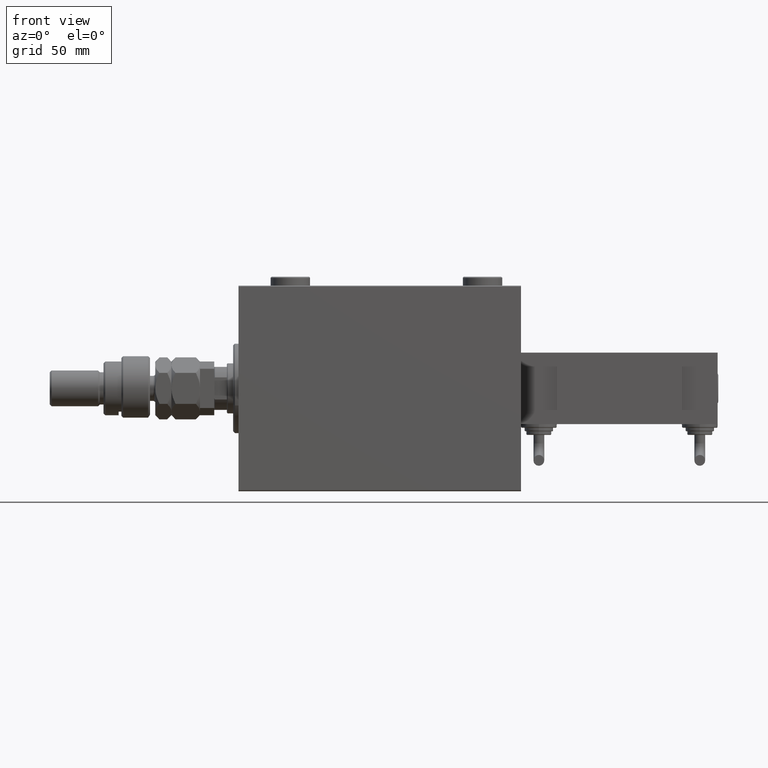
[diagram: clean part render]
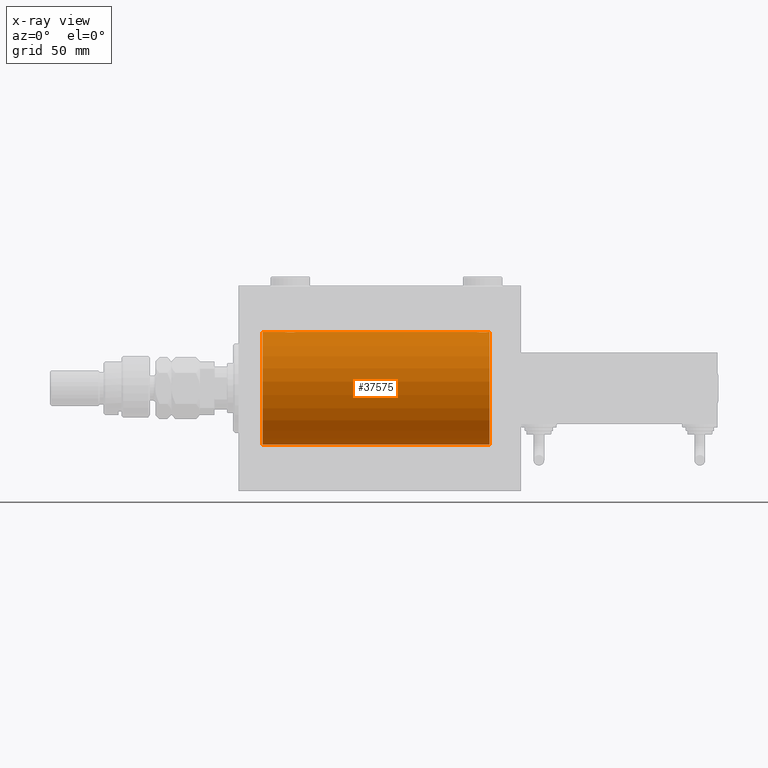
[diagram: x-ray — body ghosted, one internal face saturated and labeled with its STEP entity id]
A machine part, front view, then the same camera in x-ray: the body is ghosted and one INTERNAL B-rep face — a face not visible from any outside direction — is saturated and labeled: STEP entity #37575.
In plain terms, the highlighted cylindrical surface (partial cylindrical patch) has radius 31.5 mm, axis along (-1, -0, -0).
Its self-contained STEP definition (entity closure, byte-faithful):
#16 = CIRCLE ( 'NONE', #1745, 31.50000000000000000 ) ;
#804 = CARTESIAN_POINT ( 'NONE',  ( 32.00000000000000000, 3.857637396137448068E-15, -31.50000000000000000 ) ) ;
#909 = CARTESIAN_POINT ( 'NONE',  ( 140.5000000000000000, 0.000000000000000000, 31.50000000000000000 ) ) ;
#1101 = CARTESIAN_POINT ( 'NONE',  ( 26.39582218725271900, -1.502389880413001144, 31.46458023642405166 ) ) ;
#1145 = LINE ( 'NONE', #38729, #23881 ) ;
#1366 = CARTESIAN_POINT ( 'NONE',  ( 28.79953541025904684, -2.999845816735297266, 31.35683219171744796 ) ) ;
#1458 = CARTESIAN_POINT ( 'NONE',  ( 32.00000000000000000, 3.857637396137448068E-15, -31.50000000000000000 ) ) ;
#1727 = CARTESIAN_POINT ( 'NONE',  ( 31.26095462456130747, -1.981494824113326114, -31.43792153503156683 ) ) ;
#1745 = AXIS2_PLACEMENT_3D ( 'NONE', #36035, #48841, #52649 ) ;
#1826 = CARTESIAN_POINT ( 'NONE',  ( 133.5000000000000000, -2.118130973563677748E-23, 31.50000000000000000 ) ) ;
#2018 = VECTOR ( 'NONE', #41263, 1000.000000000000000 ) ;
#2537 = CARTESIAN_POINT ( 'NONE',  ( 31.84660463742499559, -0.9669616078781945179, -31.48567319468626735 ) ) ;
#2825 = CARTESIAN_POINT ( 'NONE',  ( 135.7253090556563109, -2.904836261170105960, -31.36579955910873707 ) ) ;
#3093 = CARTESIAN_POINT ( 'NONE',  ( 134.6729577462972713, -2.387531469909777382, -31.40957782495775419 ) ) ;
#3094 = ORIENTED_EDGE ( 'NONE', *, *, #37023, .T. ) ;
#3207 = DIRECTION ( 'NONE',  ( -1.000000000000000000, -0.000000000000000000, -0.000000000000000000 ) ) ;
#3363 = CARTESIAN_POINT ( 'NONE',  ( 133.5797933704996581, -0.7905881588836228824, -31.49214662150070509 ) ) ;
#3492 = VECTOR ( 'NONE', #3207, 1000.000000000000000 ) ;
#3867 = AXIS2_PLACEMENT_3D ( 'NONE', #5209, #32816, #12105 ) ;
#3914 = VERTEX_POINT ( 'NONE', #27612 ) ;
#4004 = CARTESIAN_POINT ( 'NONE',  ( 140.5000000000000000, 0.000000000000000000, 0.000000000000000000 ) ) ;
#4658 = CARTESIAN_POINT ( 'NONE',  ( 32.00000000000001421, -0.3965830985361748495, 31.50000000000001421 ) ) ;
#5148 = ORIENTED_EDGE ( 'NONE', *, *, #43132, .F. ) ;
#5209 = CARTESIAN_POINT ( 'NONE',  ( 13.50000000000001243, 0.000000000000000000, 0.000000000000000000 ) ) ;
#5446 = CARTESIAN_POINT ( 'NONE',  ( 28.03055544341478722, -2.845838211243333138, 31.37127560316186603 ) ) ;
#5797 = CARTESIAN_POINT ( 'NONE',  ( 31.60417781274729165, -1.502389880412996259, -31.46458023642406587 ) ) ;
#5858 = VERTEX_POINT ( 'NONE', #8378 ) ;
#6061 = CARTESIAN_POINT ( 'NONE',  ( 28.60885452660059869, -2.980809450819698725, -31.35867074198615256 ) ) ;
#6448 = CARTESIAN_POINT ( 'NONE',  ( 133.5189849060847962, -0.3904857149112037629, 31.49817436802766935 ) ) ;
#6627 = CARTESIAN_POINT ( 'NONE',  ( 133.5000000000000000, -0.3965830985361880057, -31.50000000000000000 ) ) ;
#6711 = CARTESIAN_POINT ( 'NONE',  ( 136.1046588899990581, -2.980257240990053624, 31.35872356503797320 ) ) ;
#6876 = EDGE_CURVE ( 'NONE', #53238, #47749, #30775, .T. ) ;
#6896 = CARTESIAN_POINT ( 'NONE',  ( 133.8980785956084958, -1.506272792558336793, -31.46439306106695710 ) ) ;
#7146 = B_SPLINE_CURVE_WITH_KNOTS ( 'NONE', 3,
 ( #1458, #17777, #51033, #25429, #2537, #18571, #5797, #19117, #1727, #30854, #23472, #27023, #18311, #35225, #52385, #31392, #39042, #34952, #6061, #30587, #47237, #48035, #51574, #14231, #22654, #9885, #26491, #48306, #10416, #47501, #18842, #35498 ),
 .UNSPECIFIED., .F., .F.,
 ( 4, 2, 2, 2, 2, 2, 2, 2, 2, 2, 2, 2, 2, 2, 2, 4 ),
 ( 0.009384682587134662163, 0.009971088165454068328, 0.01055749374377347449, 0.01114389932209288066, 0.01173030490041228682, 0.01231671047873168605, 0.01290311605705108527, 0.01348952163537048277, 0.01407592721368988199, 0.01466233279200928122, 0.01524873837032868044, 0.01583514394864807967, 0.01642154952696747716, 0.01700795510528687812, 0.01759436068360627908, 0.01876717184024507407 ),
 .UNSPECIFIED. ) ;
#7172 = CARTESIAN_POINT ( 'NONE',  ( 134.2417549809673574, -1.984587626072075173, -31.43772577203671759 ) ) ;
#7260 = CARTESIAN_POINT ( 'NONE',  ( 135.5305554434147837, -2.845838211243326032, 31.37127560316188024 ) ) ;
#7438 = CARTESIAN_POINT ( 'NONE',  ( 138.7609546245612933, -1.981494824113336994, -31.43792153503156683 ) ) ;
#8210 = CIRCLE ( 'NONE', #3867, 31.50000000000000000 ) ;
#8378 = CARTESIAN_POINT ( 'NONE',  ( 26.00000000000000355, -6.595038141055444136E-15, -31.50000000000000000 ) ) ;
#8734 = CARTESIAN_POINT ( 'NONE',  ( 30.82704225370267892, -2.387531469909770276, 31.40957782495776129 ) ) ;
#8831 = VECTOR ( 'NONE', #21864, 1000.000000000000000 ) ;
#9449 = DIRECTION ( 'NONE',  ( -1.000000000000000000, -0.000000000000000000, -0.000000000000000000 ) ) ;
#9853 = AXIS2_PLACEMENT_3D ( 'NONE', #4004, #53849, #33398 ) ;
#9885 = CARTESIAN_POINT ( 'NONE',  ( 26.74175498096735026, -1.984587626072075617, -31.43772577203673180 ) ) ;
#9984 = CARTESIAN_POINT ( 'NONE',  ( 140.5000000000000000, 0.000000000000000000, 31.50000000000000000 ) ) ;
#10249 = CARTESIAN_POINT ( 'NONE',  ( 136.8911454733994333, -2.980809450819698281, 31.35867074198615967 ) ) ;
#10416 = CARTESIAN_POINT ( 'NONE',  ( 26.30470357640989576, -1.331741824817665343, -31.47235367475392920 ) ) ;
#10703 = CARTESIAN_POINT ( 'NONE',  ( 133.8047035764099064, -1.331741824817667563, -31.47235367475392920 ) ) ;
#10788 = CARTESIAN_POINT ( 'NONE',  ( 133.5000000000000000, -0.1958045626907475856, 31.50000000000000000 ) ) ;
#10817 = LINE ( 'NONE', #24145, #3492 ) ;
#11054 = CARTESIAN_POINT ( 'NONE',  ( 138.4814346287304261, -2.261012035264779119, 31.41905495618428645 ) ) ;
#11322 = CARTESIAN_POINT ( 'NONE',  ( 133.6533953625750257, -0.9669616078782046209, 31.48567319468627801 ) ) ;
#11327 = CARTESIAN_POINT ( 'NONE',  ( 139.5000000000000000, 4.699731104275013306E-15, 31.50000000000000000 ) ) ;
#11775 = CARTESIAN_POINT ( 'NONE',  ( 139.4999999999999716, -0.1958045626907426173, -31.49999999999999289 ) ) ;
#12105 = DIRECTION ( 'NONE',  ( 0.000000000000000000, 0.000000000000000000, 1.000000000000000000 ) ) ;
#13466 = ORIENTED_EDGE ( 'NONE', *, *, #36084, .T. ) ;
#13593 = VERTEX_POINT ( 'NONE', #25122 ) ;
#13874 = CARTESIAN_POINT ( 'NONE',  ( 27.01539640075335669, -2.258226318633785201, 31.41925597582825702 ) ) ;
#14132 = EDGE_CURVE ( 'NONE', #15436, #5858, #7146, .T. ) ;
#14231 = CARTESIAN_POINT ( 'NONE',  ( 27.17295774629732819, -2.387531469909775605, -31.40957782495775419 ) ) ;
#14332 = CARTESIAN_POINT ( 'NONE',  ( 136.2995354102590113, -2.999845816735293713, 31.35683219171744796 ) ) ;
#14599 = CARTESIAN_POINT ( 'NONE',  ( 137.2746909443437175, -2.904836261170101519, 31.36579955910872286 ) ) ;
#14783 = CARTESIAN_POINT ( 'NONE',  ( 139.1041778127473094, -1.502389880412994483, -31.46458023642405877 ) ) ;
#15324 = CARTESIAN_POINT ( 'NONE',  ( 136.8953411100009703, -2.980257240990054513, -31.35872356503798031 ) ) ;
#15406 = CARTESIAN_POINT ( 'NONE',  ( 134.1149855772307546, -1.830470878313871008, 31.44719957596828763 ) ) ;
#15436 = VERTEX_POINT ( 'NONE', #804 ) ;
#15570 = B_SPLINE_CURVE_WITH_KNOTS ( 'NONE', 3,
 ( #25333, #42253, #25595, #33787, #25859, #21764, #1101, #29959, #50945, #13874, #26123, #42785, #29696, #5446, #33527, #25063, #1366, #50422, #17416, #17949, #50161, #29433, #30488, #8734, #34045, #22033, #34589, #41728, #46084, #38159, #4658, #46351 ),
 .UNSPECIFIED., .F., .F.,
 ( 4, 2, 2, 2, 2, 2, 2, 2, 2, 2, 2, 2, 2, 2, 2, 4 ),
 ( 0.009384682587134639611, 0.009971088165454038837, 0.01055749374377343980, 0.01114389932209284076, 0.01173030490041223999, 0.01231671047873163921, 0.01290311605705104017, 0.01348952163537044113, 0.01407592721368984036, 0.01466233279200923958, 0.01524873837032864055, 0.01583514394864804151, 0.01642154952696744247, 0.01700795510528683996, 0.01759436068360624092, 0.01876717184024503243 ),
 .UNSPECIFIED. ) ;
#15573 = CARTESIAN_POINT ( 'NONE',  ( 140.5000000000000000, 0.000000000000000000, 31.50000000000000000 ) ) ;
#15594 = CARTESIAN_POINT ( 'NONE',  ( 137.2788191264232296, -2.903733559410679455, -31.36590199989304395 ) ) ;
#15867 = CARTESIAN_POINT ( 'NONE',  ( 139.5000000000000000, 3.857637396132320472E-15, -31.50000000000000000 ) ) ;
#16408 = EDGE_CURVE ( 'NONE', #38034, #48499, #36918, .T. ) ;
#16568 = CARTESIAN_POINT ( 'NONE',  ( 140.5000000000000000, 3.857637417314162689E-15, -31.50000000000000000 ) ) ;
#16768 = FACE_OUTER_BOUND ( 'NONE', #30683, .T. ) ;
#17250 = CARTESIAN_POINT ( 'NONE',  ( 140.5000000000000000, 3.857637417314162689E-15, -31.50000000000000000 ) ) ;
#17416 = CARTESIAN_POINT ( 'NONE',  ( 29.39114547339941552, -2.980809450819701834, 31.35867074198615967 ) ) ;
#17777 = CARTESIAN_POINT ( 'NONE',  ( 32.00000000000001421, -0.1958045626907418957, -31.50000000000000711 ) ) ;
#17878 = LINE ( 'NONE', #9984, #24891 ) ;
#17949 = CARTESIAN_POINT ( 'NONE',  ( 29.77469094434372821, -2.904836261170106404, 31.36579955910873707 ) ) ;
#18311 = CARTESIAN_POINT ( 'NONE',  ( 30.33239958099164824, -2.695056442718529954, -31.38458855656185875 ) ) ;
#18343 = EDGE_CURVE ( 'NONE', #40595, #38034, #21341, .T. ) ;
#18537 = CARTESIAN_POINT ( 'NONE',  ( 13.50000000000001243, 0.000000000000000000, 31.50000000000000000 ) ) ;
#18571 = CARTESIAN_POINT ( 'NONE',  ( 31.69714238836700915, -1.328004386210301480, -31.47251238182141009 ) ) ;
#18673 = CARTESIAN_POINT ( 'NONE',  ( 134.6695630851299654, -2.384935707362434876, 31.40977595730572958 ) ) ;
#18842 = CARTESIAN_POINT ( 'NONE',  ( 26.00000000000000355, -0.3965830985361813443, -31.50000000000000711 ) ) ;
#18860 = CARTESIAN_POINT ( 'NONE',  ( 139.4041945073805380, -0.7775502215293800257, -31.49099686045559565 ) ) ;
#19117 = CARTESIAN_POINT ( 'NONE',  ( 31.38501442276926667, -1.830470878313872563, -31.44719957596828763 ) ) ;
#19135 = CARTESIAN_POINT ( 'NONE',  ( 133.5000000000000000, -1.352509265459636606E-14, -31.50000000000000000 ) ) ;
#19226 = CARTESIAN_POINT ( 'NONE',  ( 139.1019214043915326, -1.506272792558311702, 31.46439306106696421 ) ) ;
#19409 = CARTESIAN_POINT ( 'NONE',  ( 139.1971423883670411, -1.328004386210298815, -31.47251238182141009 ) ) ;
#19678 = CARTESIAN_POINT ( 'NONE',  ( 138.0045628500700161, -2.602826974226397638, -31.39247100434485560 ) ) ;
#19949 = CARTESIAN_POINT ( 'NONE',  ( 134.9990184370385293, -2.604888532024794312, -31.39229907792057972 ) ) ;
#20433 = CARTESIAN_POINT ( 'NONE',  ( 26.00000000000000355, -2.117263226567934635E-23, 31.50000000000000000 ) ) ;
#21341 = LINE ( 'NONE', #17250, #8831 ) ;
#21764 = CARTESIAN_POINT ( 'NONE',  ( 26.30285761163300151, -1.328004386210305698, 31.47251238182140298 ) ) ;
#21864 = DIRECTION ( 'NONE',  ( -1.000000000000000000, -0.000000000000000000, -0.000000000000000000 ) ) ;
#22033 = CARTESIAN_POINT ( 'NONE',  ( 31.25824501903266039, -1.984587626072074285, 31.43772577203672469 ) ) ;
#22654 = CARTESIAN_POINT ( 'NONE',  ( 27.01856537126958813, -2.261012035264781783, -31.41905495618428645 ) ) ;
#22759 = CARTESIAN_POINT ( 'NONE',  ( 137.8286541468751523, -2.696917666262893309, 31.38442820068731365 ) ) ;
#23472 = CARTESIAN_POINT ( 'NONE',  ( 30.83043691487002746, -2.384935707362433988, -31.40977595730572958 ) ) ;
#23577 = CARTESIAN_POINT ( 'NONE',  ( 138.0009815629614991, -2.604888532024791203, 31.39229907792058683 ) ) ;
#23881 = VECTOR ( 'NONE', #25379, 1000.000000000000000 ) ;
#24030 = CARTESIAN_POINT ( 'NONE',  ( 138.4846035992466682, -2.258226318633792751, -31.41925597582824992 ) ) ;
#24145 = CARTESIAN_POINT ( 'NONE',  ( 140.5000000000000000, 3.857637417314162689E-15, -31.50000000000000000 ) ) ;
#24686 = CARTESIAN_POINT ( 'NONE',  ( 133.5000000000000000, -2.118130973563677748E-23, 31.50000000000000000 ) ) ;
#24891 = VECTOR ( 'NONE', #9449, 1000.000000000000000 ) ;
#25063 = CARTESIAN_POINT ( 'NONE',  ( 28.60465888999904749, -2.980257240990054513, 31.35872356503797320 ) ) ;
#25122 = CARTESIAN_POINT ( 'NONE',  ( 32.00000000000000000, -3.906065418435112189E-16, 31.50000000000000000 ) ) ;
#25333 = CARTESIAN_POINT ( 'NONE',  ( 26.00000000000000355, -2.117263226567934635E-23, 31.50000000000000000 ) ) ;
#25379 = DIRECTION ( 'NONE',  ( -1.000000000000000000, -0.000000000000000000, -0.000000000000000000 ) ) ;
#25429 = CARTESIAN_POINT ( 'NONE',  ( 31.90419450738055218, -0.7775502215293819130, -31.49099686045559565 ) ) ;
#25595 = CARTESIAN_POINT ( 'NONE',  ( 26.01898490608483527, -0.3904857149112033743, 31.49817436802766935 ) ) ;
#25859 = CARTESIAN_POINT ( 'NONE',  ( 26.15339536257501507, -0.9669616078781987367, 31.48567319468626735 ) ) ;
#26123 = CARTESIAN_POINT ( 'NONE',  ( 27.16956308512997964, -2.384935707362437096, 31.40977595730572958 ) ) ;
#26291 = EDGE_CURVE ( 'NONE', #40595, #33526, #16, .T. ) ;
#26491 = CARTESIAN_POINT ( 'NONE',  ( 26.61753127733371116, -1.833765390051047106, -31.44700610425690002 ) ) ;
#26676 = EDGE_CURVE ( 'NONE', #33526, #47749, #32674, .T. ) ;
#26856 = CARTESIAN_POINT ( 'NONE',  ( 138.3270422537026718, -2.387531469909772941, 31.40957782495776840 ) ) ;
#27023 = CARTESIAN_POINT ( 'NONE',  ( 30.50456285006998769, -2.602826974226392309, -31.39247100434485560 ) ) ;
#27580 = CARTESIAN_POINT ( 'NONE',  ( 136.1088545266005951, -2.980809450819701834, -31.35867074198615256 ) ) ;
#27612 = CARTESIAN_POINT ( 'NONE',  ( 13.50000000000001243, 3.857637417314162689E-15, -31.50000000000000000 ) ) ;
#27668 = CARTESIAN_POINT ( 'NONE',  ( 139.1952964235900652, -1.331741824817656683, 31.47235367475393630 ) ) ;
#27965 = ORIENTED_EDGE ( 'NONE', *, *, #34635, .T. ) ;
#28396 = CARTESIAN_POINT ( 'NONE',  ( 139.4810150939152322, -0.3904857149111997106, -31.49817436802768000 ) ) ;
#28976 = LINE ( 'NONE', #909, #2018 ) ;
#29256 = VERTEX_POINT ( 'NONE', #20433 ) ;
#29433 = CARTESIAN_POINT ( 'NONE',  ( 30.32865414687508832, -2.696917666262907520, 31.38442820068731365 ) ) ;
#29696 = CARTESIAN_POINT ( 'NONE',  ( 27.66760041900836953, -2.695056442718533507, 31.38458855656185875 ) ) ;
#29959 = CARTESIAN_POINT ( 'NONE',  ( 26.61498557723073333, -1.830470878313877892, 31.44719957596828053 ) ) ;
#30488 = CARTESIAN_POINT ( 'NONE',  ( 30.50098156296146712, -2.604888532024788983, 31.39229907792058683 ) ) ;
#30587 = CARTESIAN_POINT ( 'NONE',  ( 28.22530905565627179, -2.904836261170103739, -31.36579955910872286 ) ) ;
#30683 = EDGE_LOOP ( 'NONE', ( #32030, #50118, #47280, #13466, #49318, #52546, #27965, #5148, #3094, #33257, #53525, #35910 ) ) ;
#30775 = B_SPLINE_CURVE_WITH_KNOTS ( 'NONE', 3,
 ( #1826, #10788, #6448, #51677, #11322, #52494, #36141, #15406, #32036, #48678, #18673, #51941, #44048, #7260, #31773, #6711, #14332, #39965, #10249, #14599, #48409, #22759, #23577, #26856, #11054, #31502, #39141, #19226, #27668, #30953, #44320, #31225 ),
 .UNSPECIFIED., .F., .F.,
 ( 4, 2, 2, 2, 2, 2, 2, 2, 2, 2, 2, 2, 2, 2, 2, 4 ),
 ( 0.009384682587134643081, 0.009971088165454042307, 0.01055749374377344327, 0.01114389932209284423, 0.01173030490041224345, 0.01231671047873164268, 0.01290311605705104364, 0.01348952163537044460, 0.01407592721368984383, 0.01466233279200924305, 0.01524873837032864402, 0.01583514394864804498, 0.01642154952696744594, 0.01700795510528684690, 0.01759436068360624439, 0.01876717184024504284 ),
 .UNSPECIFIED. ) ;
#30854 = CARTESIAN_POINT ( 'NONE',  ( 30.98460359924664687, -2.258226318633781649, -31.41925597582825702 ) ) ;
#30953 = CARTESIAN_POINT ( 'NONE',  ( 139.4202066295003988, -0.7905881588836107809, 31.49214662150069088 ) ) ;
#30974 = CARTESIAN_POINT ( 'NONE',  ( 139.5000000000000000, 3.857637396132320472E-15, -31.50000000000000000 ) ) ;
#31225 = CARTESIAN_POINT ( 'NONE',  ( 139.5000000000000000, 4.699731104275013306E-15, 31.50000000000000000 ) ) ;
#31392 = CARTESIAN_POINT ( 'NONE',  ( 29.39534111000094541, -2.980257240990050960, -31.35872356503797320 ) ) ;
#31441 = VERTEX_POINT ( 'NONE', #18537 ) ;
#31502 = CARTESIAN_POINT ( 'NONE',  ( 138.7582450190326995, -1.984587626072069844, 31.43772577203671759 ) ) ;
#31685 = CARTESIAN_POINT ( 'NONE',  ( 137.4694445565852448, -2.845838211243329585, -31.37127560316186603 ) ) ;
#31773 = CARTESIAN_POINT ( 'NONE',  ( 135.7211808735768841, -2.903733559410683895, 31.36590199989304395 ) ) ;
#32030 = ORIENTED_EDGE ( 'NONE', *, *, #26291, .F. ) ;
#32036 = CARTESIAN_POINT ( 'NONE',  ( 134.2390453754387636, -1.981494824113333442, 31.43792153503156683 ) ) ;
#32136 = DIRECTION ( 'NONE',  ( -1.000000000000000000, -0.000000000000000000, -0.000000000000000000 ) ) ;
#32216 = CARTESIAN_POINT ( 'NONE',  ( 134.5185653712696308, -2.261012035264782671, -31.41905495618427935 ) ) ;
#32590 = EDGE_CURVE ( 'NONE', #53238, #13593, #28976, .T. ) ;
#32674 = LINE ( 'NONE', #44690, #45329 ) ;
#32816 = DIRECTION ( 'NONE',  ( -1.000000000000000000, 0.000000000000000000, 0.000000000000000000 ) ) ;
#33257 = ORIENTED_EDGE ( 'NONE', *, *, #32590, .F. ) ;
#33398 = DIRECTION ( 'NONE',  ( 0.000000000000000000, 0.000000000000000000, 1.000000000000000000 ) ) ;
#33526 = VERTEX_POINT ( 'NONE', #15573 ) ;
#33527 = CARTESIAN_POINT ( 'NONE',  ( 28.22118087357680238, -2.903733559410683895, 31.36590199989303684 ) ) ;
#33787 = CARTESIAN_POINT ( 'NONE',  ( 26.09580549261944427, -0.7775502215293862429, 31.49099686045558144 ) ) ;
#34045 = CARTESIAN_POINT ( 'NONE',  ( 30.98143462873041898, -2.261012035264782227, 31.41905495618429356 ) ) ;
#34589 = CARTESIAN_POINT ( 'NONE',  ( 31.38246872266631371, -1.833765390051040223, 31.44700610425690712 ) ) ;
#34635 = EDGE_CURVE ( 'NONE', #3914, #31441, #8210, .T. ) ;
#34952 = CARTESIAN_POINT ( 'NONE',  ( 28.80417705560560648, -3.000152387858484371, -31.35680286115500337 ) ) ;
#35225 = CARTESIAN_POINT ( 'NONE',  ( 29.96944455658523054, -2.845838211243329585, -31.37127560316186603 ) ) ;
#35498 = CARTESIAN_POINT ( 'NONE',  ( 26.00000000000000355, -6.595038141055444136E-15, -31.50000000000000000 ) ) ;
#35910 = ORIENTED_EDGE ( 'NONE', *, *, #26676, .F. ) ;
#36035 = CARTESIAN_POINT ( 'NONE',  ( 140.5000000000000000, 0.000000000000000000, 0.000000000000000000 ) ) ;
#36084 = EDGE_CURVE ( 'NONE', #48499, #15436, #1145, .T. ) ;
#36141 = CARTESIAN_POINT ( 'NONE',  ( 133.8958221872527474, -1.502389880412993595, 31.46458023642405877 ) ) ;
#36918 = B_SPLINE_CURVE_WITH_KNOTS ( 'NONE', 3,
 ( #15867, #11775, #28396, #18860, #45048, #19409, #14783, #44235, #7438, #24030, #44506, #19678, #43963, #31685, #15594, #15324, #48055, #53212, #27580, #2825, #44774, #48594, #19949, #3093, #32216, #7172, #40693, #6896, #10703, #3363, #6627, #19135 ),
 .UNSPECIFIED., .F., .F.,
 ( 4, 2, 2, 2, 2, 2, 2, 2, 2, 2, 2, 2, 2, 2, 2, 4 ),
 ( 0.009384682587134637877, 0.009971088165454037103, 0.01055749374377343633, 0.01114389932209283382, 0.01173030490041223305, 0.01231671047873163227, 0.01290311605705102976, 0.01348952163537042899, 0.01407592721368982822, 0.01466233279200922744, 0.01524873837032862667, 0.01583514394864802416, 0.01642154952696742165, 0.01700795510528682261, 0.01759436068360622010, 0.01876717184024501855 ),
 .UNSPECIFIED. ) ;
#37023 = EDGE_CURVE ( 'NONE', #29256, #13593, #15570, .T. ) ;
#37575 = ADVANCED_FACE ( 'NONE', ( #16768 ), #50827, .F. ) ;
#38034 = VERTEX_POINT ( 'NONE', #30974 ) ;
#38159 = CARTESIAN_POINT ( 'NONE',  ( 31.92020662950040943, -0.7905881588836116691, 31.49214662150068378 ) ) ;
#38729 = CARTESIAN_POINT ( 'NONE',  ( 140.5000000000000000, 3.857637417314162689E-15, -31.50000000000000000 ) ) ;
#39042 = CARTESIAN_POINT ( 'NONE',  ( 29.20046458974095671, -2.999845816735294157, -31.35683219171744085 ) ) ;
#39141 = CARTESIAN_POINT ( 'NONE',  ( 138.8824687226663173, -1.833765390051030009, 31.44700610425690712 ) ) ;
#39539 = CARTESIAN_POINT ( 'NONE',  ( 133.5000000000000000, -1.352509265459636606E-14, -31.50000000000000000 ) ) ;
#39965 = CARTESIAN_POINT ( 'NONE',  ( 136.6958229443944504, -3.000152387858483927, 31.35680286115499626 ) ) ;
#40595 = VERTEX_POINT ( 'NONE', #16568 ) ;
#40693 = CARTESIAN_POINT ( 'NONE',  ( 134.1175312773337112, -1.833765390051051769, -31.44700610425689291 ) ) ;
#41263 = DIRECTION ( 'NONE',  ( -1.000000000000000000, -0.000000000000000000, -0.000000000000000000 ) ) ;
#41728 = CARTESIAN_POINT ( 'NONE',  ( 31.60192140439154684, -1.506272792558323470, 31.46439306106697131 ) ) ;
#42253 = CARTESIAN_POINT ( 'NONE',  ( 26.00000000000001066, -0.1958045626907463088, 31.50000000000000711 ) ) ;
#42785 = CARTESIAN_POINT ( 'NONE',  ( 27.49543714993000876, -2.602826974226395862, 31.39247100434485560 ) ) ;
#43132 = EDGE_CURVE ( 'NONE', #29256, #31441, #17878, .T. ) ;
#43963 = CARTESIAN_POINT ( 'NONE',  ( 137.8323995809916767, -2.695056442718527290, -31.38458855656186230 ) ) ;
#44048 = CARTESIAN_POINT ( 'NONE',  ( 135.1676004190083233, -2.695056442718522849, 31.38458855656185165 ) ) ;
#44235 = CARTESIAN_POINT ( 'NONE',  ( 138.8850144227692738, -1.830470878313873895, -31.44719957596828763 ) ) ;
#44320 = CARTESIAN_POINT ( 'NONE',  ( 139.5000000000000000, -0.3965830985361761263, 31.50000000000000000 ) ) ;
#44506 = CARTESIAN_POINT ( 'NONE',  ( 138.3304369148700346, -2.384935707362437984, -31.40977595730572958 ) ) ;
#44690 = CARTESIAN_POINT ( 'NONE',  ( 140.5000000000000000, 0.000000000000000000, 31.50000000000000000 ) ) ;
#44774 = CARTESIAN_POINT ( 'NONE',  ( 135.5348427018936093, -2.847307171789039248, -31.37114183851420179 ) ) ;
#45048 = CARTESIAN_POINT ( 'NONE',  ( 139.3466046374249743, -0.9669616078781922974, -31.48567319468626735 ) ) ;
#45329 = VECTOR ( 'NONE', #32136, 1000.000000000000000 ) ;
#46084 = CARTESIAN_POINT ( 'NONE',  ( 31.69529642359010424, -1.331741824817659348, 31.47235367475393630 ) ) ;
#46351 = CARTESIAN_POINT ( 'NONE',  ( 32.00000000000000000, -3.906065418435112189E-16, 31.50000000000000000 ) ) ;
#47237 = CARTESIAN_POINT ( 'NONE',  ( 28.03484270189360217, -2.847307171789034808, -31.37114183851420179 ) ) ;
#47280 = ORIENTED_EDGE ( 'NONE', *, *, #16408, .T. ) ;
#47501 = CARTESIAN_POINT ( 'NONE',  ( 26.07979337049960478, -0.7905881588836203289, -31.49214662150069088 ) ) ;
#47749 = VERTEX_POINT ( 'NONE', #11327 ) ;
#48035 = CARTESIAN_POINT ( 'NONE',  ( 27.67134585312494011, -2.696917666262907520, -31.38442820068732786 ) ) ;
#48055 = CARTESIAN_POINT ( 'NONE',  ( 136.7004645897410171, -2.999845816735297710, -31.35683219171744796 ) ) ;
#48306 = CARTESIAN_POINT ( 'NONE',  ( 26.39807859560848158, -1.506272792558332130, -31.46439306106697131 ) ) ;
#48409 = CARTESIAN_POINT ( 'NONE',  ( 137.4651572981064476, -2.847307171789025926, 31.37114183851420179 ) ) ;
#48499 = VERTEX_POINT ( 'NONE', #39539 ) ;
#48594 = CARTESIAN_POINT ( 'NONE',  ( 135.1713458531249046, -2.696917666262910629, -31.38442820068732075 ) ) ;
#48678 = CARTESIAN_POINT ( 'NONE',  ( 134.5153964007533602, -2.258226318633788754, 31.41925597582826413 ) ) ;
#48841 = DIRECTION ( 'NONE',  ( -1.000000000000000000, 0.000000000000000000, 0.000000000000000000 ) ) ;
#49318 = ORIENTED_EDGE ( 'NONE', *, *, #14132, .T. ) ;
#50118 = ORIENTED_EDGE ( 'NONE', *, *, #18343, .T. ) ;
#50161 = CARTESIAN_POINT ( 'NONE',  ( 29.96515729810641204, -2.847307171789037028, 31.37114183851420890 ) ) ;
#50422 = CARTESIAN_POINT ( 'NONE',  ( 29.19582294439440417, -3.000152387858486147, 31.35680286115499626 ) ) ;
#50827 = CYLINDRICAL_SURFACE ( 'NONE', #9853, 31.50000000000000000 ) ;
#50945 = CARTESIAN_POINT ( 'NONE',  ( 26.73904537543869608, -1.981494824113328779, 31.43792153503155973 ) ) ;
#51033 = CARTESIAN_POINT ( 'NONE',  ( 31.98101509391517538, -0.3904857149111993775, -31.49817436802766224 ) ) ;
#51574 = CARTESIAN_POINT ( 'NONE',  ( 27.49901843703856130, -2.604888532024793424, -31.39229907792058683 ) ) ;
#51677 = CARTESIAN_POINT ( 'NONE',  ( 133.5958054926194905, -0.7775502215293850217, 31.49099686045560276 ) ) ;
#51941 = CARTESIAN_POINT ( 'NONE',  ( 134.9954371499300407, -2.602826974226394086, 31.39247100434485560 ) ) ;
#52385 = CARTESIAN_POINT ( 'NONE',  ( 29.77881912642320827, -2.903733559410679455, -31.36590199989303684 ) ) ;
#52494 = CARTESIAN_POINT ( 'NONE',  ( 133.8028576116330441, -1.328004386210311472, 31.47251238182141719 ) ) ;
#52546 = ORIENTED_EDGE ( 'NONE', *, *, #53111, .T. ) ;
#52649 = DIRECTION ( 'NONE',  ( 0.000000000000000000, 0.000000000000000000, 1.000000000000000000 ) ) ;
#53111 = EDGE_CURVE ( 'NONE', #5858, #3914, #10817, .T. ) ;
#53212 = CARTESIAN_POINT ( 'NONE',  ( 136.3041770556056065, -3.000152387858487923, -31.35680286115500337 ) ) ;
#53238 = VERTEX_POINT ( 'NONE', #24686 ) ;
#53525 = ORIENTED_EDGE ( 'NONE', *, *, #6876, .T. ) ;
#53849 = DIRECTION ( 'NONE',  ( -1.000000000000000000, -0.000000000000000000, -0.000000000000000000 ) ) ;